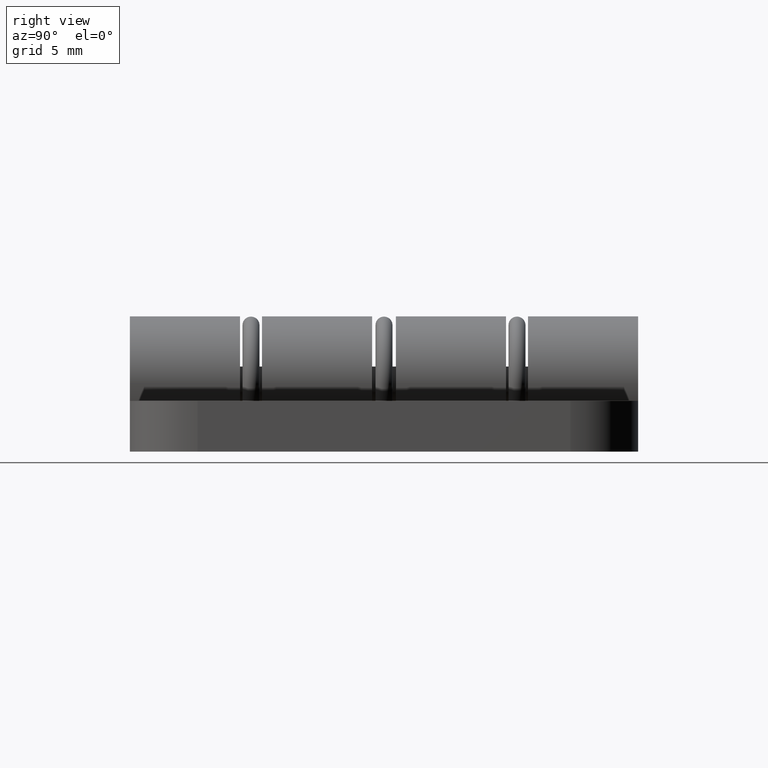
[diagram: clean part render]
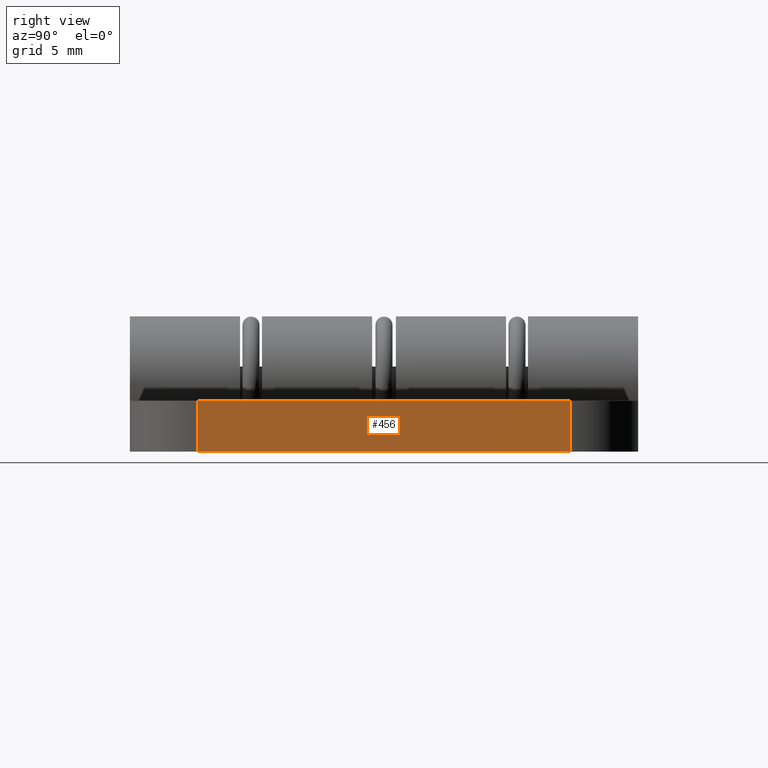
[diagram: same view with one face highlighted and labeled with its STEP entity id]
A machine part, right view. The second image highlights one B-rep face of the part: STEP entity #456.
In plain terms, the highlighted planar face has unit normal (1, -0, 0).
Its self-contained STEP definition (entity closure, byte-faithful):
#53=LINE('',#747,#81);
#59=LINE('',#770,#87);
#60=LINE('',#773,#88);
#61=LINE('',#774,#89);
#81=VECTOR('',#595,22.);
#87=VECTOR('',#621,3.);
#88=VECTOR('',#624,3.);
#89=VECTOR('',#625,22.);
#149=FACE_OUTER_BOUND('',#186,.T.);
#186=EDGE_LOOP('',(#383,#384,#385,#386));
#255=VERTEX_POINT('',#744);
#256=VERTEX_POINT('',#746);
#262=VERTEX_POINT('',#766);
#264=VERTEX_POINT('',#772);
#299=EDGE_CURVE('',#255,#256,#53,.T.);
#311=EDGE_CURVE('',#256,#262,#59,.T.);
#312=EDGE_CURVE('',#264,#255,#60,.T.);
#313=EDGE_CURVE('',#264,#262,#61,.T.);
#383=ORIENTED_EDGE('',*,*,#311,.F.);
#384=ORIENTED_EDGE('',*,*,#299,.F.);
#385=ORIENTED_EDGE('',*,*,#312,.F.);
#386=ORIENTED_EDGE('',*,*,#313,.T.);
#436=PLANE('',#505);
#456=ADVANCED_FACE('',(#149),#436,.T.);
#505=AXIS2_PLACEMENT_3D('',#771,#622,#623);
#595=DIRECTION('',(0.,1.,0.));
#621=DIRECTION('',(0.,0.,-1.));
#622=DIRECTION('center_axis',(1.,0.,0.));
#623=DIRECTION('ref_axis',(0.,0.,-1.));
#624=DIRECTION('',(0.,0.,1.));
#625=DIRECTION('',(0.,1.,0.));
#744=CARTESIAN_POINT('',(0.,4.,3.));
#746=CARTESIAN_POINT('',(0.,26.,3.));
#747=CARTESIAN_POINT('',(0.,0.,3.));
#766=CARTESIAN_POINT('',(0.,26.,0.));
#770=CARTESIAN_POINT('',(0.,26.,2.7389291403498));
#771=CARTESIAN_POINT('Origin',(0.,0.,3.));
#772=CARTESIAN_POINT('',(0.,4.,0.));
#773=CARTESIAN_POINT('',(0.,4.,2.7389291403498));
#774=CARTESIAN_POINT('',(0.,0.,0.));